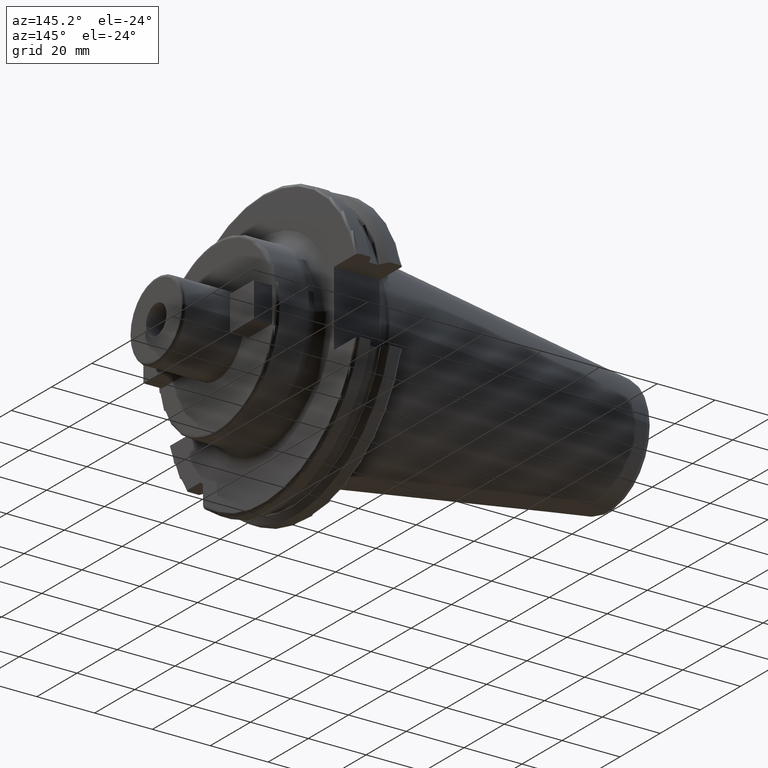
[diagram: clean part render]
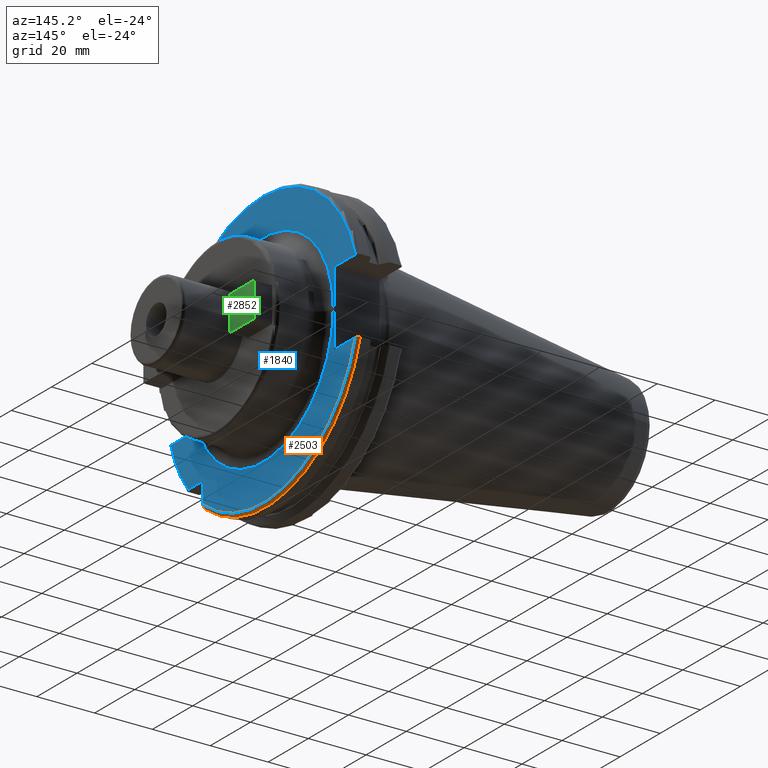
[diagram: same view with three faces highlighted in distinct colors, each labeled with its STEP entity id]
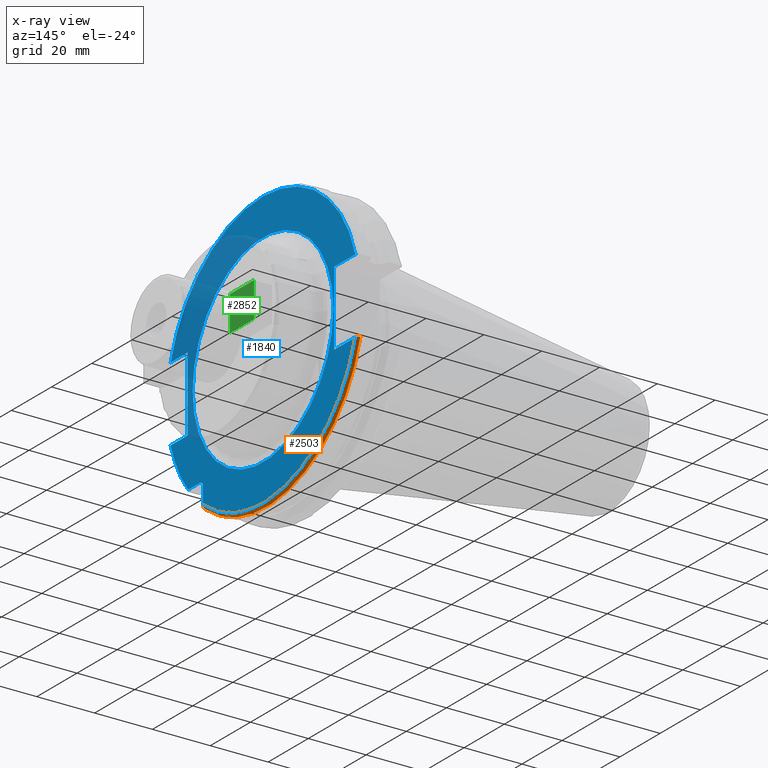
[diagram: x-ray of the same camera — body ghosted, the three highlighted faces saturated]
A machine part, auxiliary view with three faces highlighted in distinct colors.
The next image is the same camera in x-ray (body ghosted, the three faces saturated) — at least one of them is partly hidden behind the body in this view.
Their STEP definitions:

[orange] entity #2503 — the highlighted toroidal blend (fillet) surface has major radius 47.7375 mm and minor (blend) radius 1 mm.
#749=CARTESIAN_POINT('',(1.805E1,0.E0,0.E0));
#750=DIRECTION('',(-1.E0,0.E0,0.E0));
#751=DIRECTION('',(0.E0,9.643354064066E-1,-2.646832521159E-1));
#752=AXIS2_PLACEMENT_3D('',#749,#750,#751);
#823=CARTESIAN_POINT('',(1.805E1,4.699929686974E1,-1.29E1));
#824=CARTESIAN_POINT('',(1.812676342368E1,4.699929686974E1,-1.29E1));
#825=CARTESIAN_POINT('',(1.827575329770E1,4.698147245914E1,-1.29E1));
#826=CARTESIAN_POINT('',(1.849056832427E1,4.690313408822E1,-1.29E1));
#827=CARTESIAN_POINT('',(1.868190698842E1,4.677722381974E1,-1.29E1));
#828=CARTESIAN_POINT('',(1.884050497536E1,4.661134760606E1,-1.29E1));
#829=CARTESIAN_POINT('',(1.895953365851E1,4.641358752589E1,-1.29E1));
#830=CARTESIAN_POINT('',(1.903320906929E1,4.619315655817E1,-1.29E1));
#831=CARTESIAN_POINT('',(1.905E1,4.604021961607E1,-1.29E1));
#832=CARTESIAN_POINT('',(1.905E1,4.596149373389E1,-1.29E1));
#834=CARTESIAN_POINT('',(1.905E1,-2.985E1,-3.725381062724E1));
#835=CARTESIAN_POINT('',(1.905E1,-2.985E1,-3.738469466089E1));
#836=CARTESIAN_POINT('',(1.902018122037E1,-2.985E1,-3.763003230112E1));
#837=CARTESIAN_POINT('',(1.889737682100E1,-2.985E1,-3.796247242770E1));
#838=CARTESIAN_POINT('',(1.872069975737E1,-2.985E1,-3.821853261177E1));
#839=CARTESIAN_POINT('',(1.851107723549E1,-2.985E1,-3.839881428419E1));
#840=CARTESIAN_POINT('',(1.828305662300E1,-2.985E1,-3.850407117903E1));
#841=CARTESIAN_POINT('',(1.812863534913E1,-2.985E1,-3.852689198793E1));
#842=CARTESIAN_POINT('',(1.805E1,-2.985E1,-3.852689198793E1));
#844=CARTESIAN_POINT('',(1.905E1,0.E0,0.E0));
#845=DIRECTION('',(-1.E0,0.E0,0.E0));
#846=DIRECTION('',(0.E0,9.627964123359E-1,-2.702278083268E-1));
#847=AXIS2_PLACEMENT_3D('',#844,#845,#846);
#1468=CARTESIAN_POINT('',(1.905E1,4.596149373389E1,-1.29E1));
#1469=VERTEX_POINT('',#1468);
#1508=CARTESIAN_POINT('',(1.805E1,4.699929686974E1,-1.29E1));
#1509=VERTEX_POINT('',#1508);
#1531=CARTESIAN_POINT('',(1.905E1,-2.985E1,-3.725381062724E1));
#1532=VERTEX_POINT('',#1531);
#1533=CARTESIAN_POINT('',(1.805E1,-2.985E1,-3.852689198793E1));
#1534=VERTEX_POINT('',#1533);
#2492=CARTESIAN_POINT('',(1.805E1,0.E0,0.E0));
#2493=DIRECTION('',(1.E0,0.E0,0.E0));
#2494=DIRECTION('',(0.E0,-1.E0,0.E0));
#2495=AXIS2_PLACEMENT_3D('',#2492,#2493,#2494);
#2496=TOROIDAL_SURFACE('',#2495,4.77375E1,1.E0);
#2497=ORIENTED_EDGE('',*,*,#2003,.F.);
#2498=ORIENTED_EDGE('',*,*,#2437,.T.);
#2499=ORIENTED_EDGE('',*,*,#1849,.F.);
#2500=ORIENTED_EDGE('',*,*,#1830,.F.);
#2501=EDGE_LOOP('',(#2497,#2498,#2499,#2500));
#2502=FACE_OUTER_BOUND('',#2501,.F.);
#2503=ADVANCED_FACE('',(#2502),#2496,.T.);
#753=CIRCLE('',#752,4.87375E1);
#833=B_SPLINE_CURVE_WITH_KNOTS('',3,(#823,#824,#825,#826,#827,#828,#829,#830,
#831,#832),.UNSPECIFIED.,.F.,.F.,(4,1,1,1,1,1,1,4),(0.E0,1.428571428571E-1,
2.857142857143E-1,4.285714285714E-1,5.714285714286E-1,7.142857142857E-1,
8.571428571429E-1,1.E0),.UNSPECIFIED.);
#843=B_SPLINE_CURVE_WITH_KNOTS('',3,(#834,#835,#836,#837,#838,#839,#840,#841,
#842),.UNSPECIFIED.,.F.,.F.,(4,1,1,1,1,1,4),(0.E0,1.666666666667E-1,
3.333333333333E-1,5.E-1,6.666666666667E-1,8.333333333333E-1,1.E0),
.UNSPECIFIED.);
#848=CIRCLE('',#847,4.77375E1);
#1830=EDGE_CURVE('',#1469,#1532,#848,.T.);
#1849=EDGE_CURVE('',#1532,#1534,#843,.T.);
#2003=EDGE_CURVE('',#1509,#1469,#833,.T.);
#2437=EDGE_CURVE('',#1509,#1534,#753,.T.);

[blue] entity #1840 — the highlighted planar face has unit normal (1, 0, 0).
#126=DIRECTION('',(0.E0,0.E0,1.E0));
#127=VECTOR('',#126,5.653810627237E0);
#128=CARTESIAN_POINT('',(1.905E1,-2.985E1,-3.725381062724E1));
#129=LINE('',#128,#127);
#130=DIRECTION('',(0.E0,-1.E0,0.E0));
#131=VECTOR('',#130,5.653810627237E0);
#132=CARTESIAN_POINT('',(1.905E1,-3.16E1,-2.985E1));
#133=LINE('',#132,#131);
#134=DIRECTION('',(0.E0,1.E0,0.E0));
#135=VECTOR('',#134,8.461493733886E0);
#136=CARTESIAN_POINT('',(1.905E1,-4.596149373389E1,-1.29E1));
#137=LINE('',#136,#135);
#138=DIRECTION('',(0.E0,0.E0,1.E0));
#139=VECTOR('',#138,2.58E1);
#140=CARTESIAN_POINT('',(1.905E1,-3.75E1,-1.29E1));
#141=LINE('',#140,#139);
#142=DIRECTION('',(0.E0,1.E0,0.E0));
#143=VECTOR('',#142,8.461493733886E0);
#144=CARTESIAN_POINT('',(1.905E1,-4.596149373389E1,1.29E1));
#145=LINE('',#144,#143);
#146=DIRECTION('',(0.E0,-1.E0,0.E0));
#147=VECTOR('',#146,1.066149373389E1);
#148=CARTESIAN_POINT('',(1.905E1,4.596149373389E1,1.29E1));
#149=LINE('',#148,#147);
#150=DIRECTION('',(0.E0,0.E0,-1.E0));
#151=VECTOR('',#150,2.58E1);
#152=CARTESIAN_POINT('',(1.905E1,3.53E1,1.29E1));
#153=LINE('',#152,#151);
#154=DIRECTION('',(0.E0,-1.E0,0.E0));
#155=VECTOR('',#154,1.066149373389E1);
#156=CARTESIAN_POINT('',(1.905E1,4.596149373389E1,-1.29E1));
#157=LINE('',#156,#155);
#158=CARTESIAN_POINT('',(1.905E1,0.E0,0.E0));
#159=DIRECTION('',(1.E0,0.E0,0.E0));
#160=DIRECTION('',(0.E0,-1.E0,0.E0));
#161=AXIS2_PLACEMENT_3D('',#158,#159,#160);
#163=CARTESIAN_POINT('',(1.905E1,0.E0,0.E0));
#164=DIRECTION('',(1.E0,0.E0,0.E0));
#165=DIRECTION('',(0.E0,1.E0,0.E0));
#166=AXIS2_PLACEMENT_3D('',#163,#164,#165);
#172=CARTESIAN_POINT('',(1.905E1,-3.16E1,-3.16E1));
#173=DIRECTION('',(-1.E0,0.E0,0.E0));
#174=DIRECTION('',(0.E0,0.E0,1.E0));
#175=AXIS2_PLACEMENT_3D('',#172,#173,#174);
#545=CARTESIAN_POINT('',(1.905E1,0.E0,0.E0));
#546=DIRECTION('',(1.E0,0.E0,0.E0));
#547=DIRECTION('',(0.E0,9.627964123359E-1,2.702278083268E-1));
#548=AXIS2_PLACEMENT_3D('',#545,#546,#547);
#844=CARTESIAN_POINT('',(1.905E1,0.E0,0.E0));
#845=DIRECTION('',(-1.E0,0.E0,0.E0));
#846=DIRECTION('',(0.E0,9.627964123359E-1,-2.702278083268E-1));
#847=AXIS2_PLACEMENT_3D('',#844,#845,#846);
#860=CARTESIAN_POINT('',(1.905E1,0.E0,0.E0));
#861=DIRECTION('',(-1.E0,0.E0,0.E0));
#862=DIRECTION('',(0.E0,-7.803888060170E-1,-6.252945797329E-1));
#863=AXIS2_PLACEMENT_3D('',#860,#861,#862);
#874=CARTESIAN_POINT('',(1.905E1,-3.725381062724E1,-2.985E1));
#1462=CARTESIAN_POINT('',(1.905E1,4.596149373389E1,1.29E1));
#1463=CARTESIAN_POINT('',(1.905E1,3.53E1,1.29E1));
#1464=VERTEX_POINT('',#1462);
#1465=VERTEX_POINT('',#1463);
#1466=CARTESIAN_POINT('',(1.905E1,3.53E1,-1.29E1));
#1467=VERTEX_POINT('',#1466);
#1468=CARTESIAN_POINT('',(1.905E1,4.596149373389E1,-1.29E1));
#1469=VERTEX_POINT('',#1468);
#1470=CARTESIAN_POINT('',(1.905E1,-4.596149373389E1,-1.29E1));
#1471=CARTESIAN_POINT('',(1.905E1,-3.75E1,-1.29E1));
#1472=VERTEX_POINT('',#1470);
#1473=VERTEX_POINT('',#1471);
#1474=CARTESIAN_POINT('',(1.905E1,-3.75E1,1.29E1));
#1475=VERTEX_POINT('',#1474);
#1476=CARTESIAN_POINT('',(1.905E1,-4.596149373389E1,1.29E1));
#1477=VERTEX_POINT('',#1476);
#1531=CARTESIAN_POINT('',(1.905E1,-2.985E1,-3.725381062724E1));
#1532=VERTEX_POINT('',#1531);
#1539=CARTESIAN_POINT('',(1.905E1,-3.16E1,-2.985E1));
#1540=CARTESIAN_POINT('',(1.905E1,-2.985E1,-3.16E1));
#1541=VERTEX_POINT('',#1539);
#1542=VERTEX_POINT('',#1540);
#1564=VERTEX_POINT('',#874);
#1570=CARTESIAN_POINT('',(1.905E1,-3.5E1,0.E0));
#1571=CARTESIAN_POINT('',(1.905E1,3.5E1,0.E0));
#1572=VERTEX_POINT('',#1570);
#1573=VERTEX_POINT('',#1571);
#1804=CARTESIAN_POINT('',(1.905E1,0.E0,0.E0));
#1805=DIRECTION('',(1.E0,0.E0,0.E0));
#1806=DIRECTION('',(0.E0,-1.E0,0.E0));
#1807=AXIS2_PLACEMENT_3D('',#1804,#1805,#1806);
#1808=PLANE('',#1807);
#1810=ORIENTED_EDGE('',*,*,#1809,.T.);
#1812=ORIENTED_EDGE('',*,*,#1811,.F.);
#1814=ORIENTED_EDGE('',*,*,#1813,.T.);
#1816=ORIENTED_EDGE('',*,*,#1815,.T.);
#1818=ORIENTED_EDGE('',*,*,#1817,.T.);
#1820=ORIENTED_EDGE('',*,*,#1819,.T.);
#1822=ORIENTED_EDGE('',*,*,#1821,.F.);
#1824=ORIENTED_EDGE('',*,*,#1823,.F.);
#1826=ORIENTED_EDGE('',*,*,#1825,.T.);
#1827=ORIENTED_EDGE('',*,*,#1788,.T.);
#1829=ORIENTED_EDGE('',*,*,#1828,.F.);
#1831=ORIENTED_EDGE('',*,*,#1830,.T.);
#1832=EDGE_LOOP('',(#1810,#1812,#1814,#1816,#1818,#1820,#1822,#1824,#1826,#1827,
#1829,#1831));
#1833=FACE_OUTER_BOUND('',#1832,.F.);
#1835=ORIENTED_EDGE('',*,*,#1834,.T.);
#1837=ORIENTED_EDGE('',*,*,#1836,.T.);
#1838=EDGE_LOOP('',(#1835,#1837));
#1839=FACE_BOUND('',#1838,.F.);
#1840=ADVANCED_FACE('',(#1833,#1839),#1808,.T.);
#162=CIRCLE('',#161,3.5E1);
#167=CIRCLE('',#166,3.5E1);
#176=CIRCLE('',#175,1.75E0);
#549=CIRCLE('',#548,4.77375E1);
#848=CIRCLE('',#847,4.77375E1);
#864=CIRCLE('',#863,4.77375E1);
#1788=EDGE_CURVE('',#1465,#1467,#153,.T.);
#1809=EDGE_CURVE('',#1532,#1542,#129,.T.);
#1811=EDGE_CURVE('',#1541,#1542,#176,.T.);
#1813=EDGE_CURVE('',#1541,#1564,#133,.T.);
#1815=EDGE_CURVE('',#1564,#1472,#864,.T.);
#1817=EDGE_CURVE('',#1472,#1473,#137,.T.);
#1819=EDGE_CURVE('',#1473,#1475,#141,.T.);
#1821=EDGE_CURVE('',#1477,#1475,#145,.T.);
#1823=EDGE_CURVE('',#1464,#1477,#549,.T.);
#1825=EDGE_CURVE('',#1464,#1465,#149,.T.);
#1828=EDGE_CURVE('',#1469,#1467,#157,.T.);
#1830=EDGE_CURVE('',#1469,#1532,#848,.T.);
#1834=EDGE_CURVE('',#1572,#1573,#162,.T.);
#1836=EDGE_CURVE('',#1573,#1572,#167,.T.);

[green] entity #2852 — the highlighted planar face has unit normal (1, 0, 0).
#1086=DIRECTION('',(0.E0,-1.E0,0.E0));
#1087=VECTOR('',#1086,1.2E1);
#1088=CARTESIAN_POINT('',(4.13E1,2.75E1,6.E0));
#1089=LINE('',#1088,#1087);
#1090=DIRECTION('',(0.E0,0.E0,1.E0));
#1091=VECTOR('',#1090,1.2E1);
#1092=CARTESIAN_POINT('',(4.13E1,2.75E1,-6.E0));
#1093=LINE('',#1092,#1091);
#1094=DIRECTION('',(0.E0,1.E0,0.E0));
#1095=VECTOR('',#1094,1.2E1);
#1096=CARTESIAN_POINT('',(4.13E1,1.55E1,-6.E0));
#1097=LINE('',#1096,#1095);
#1098=DIRECTION('',(0.E0,0.E0,-1.E0));
#1099=VECTOR('',#1098,1.2E1);
#1100=CARTESIAN_POINT('',(4.13E1,1.55E1,6.E0));
#1101=LINE('',#1100,#1099);
#1604=CARTESIAN_POINT('',(4.13E1,2.75E1,6.E0));
#1605=CARTESIAN_POINT('',(4.13E1,1.55E1,6.E0));
#1606=VERTEX_POINT('',#1604);
#1607=VERTEX_POINT('',#1605);
#1608=CARTESIAN_POINT('',(4.13E1,1.55E1,-6.E0));
#1609=VERTEX_POINT('',#1608);
#1610=CARTESIAN_POINT('',(4.13E1,2.75E1,-6.E0));
#1611=VERTEX_POINT('',#1610);
#2841=CARTESIAN_POINT('',(4.13E1,0.E0,0.E0));
#2842=DIRECTION('',(1.E0,0.E0,0.E0));
#2843=DIRECTION('',(0.E0,0.E0,-1.E0));
#2844=AXIS2_PLACEMENT_3D('',#2841,#2842,#2843);
#2845=PLANE('',#2844);
#2846=ORIENTED_EDGE('',*,*,#2793,.F.);
#2847=ORIENTED_EDGE('',*,*,#2808,.F.);
#2848=ORIENTED_EDGE('',*,*,#2822,.F.);
#2849=ORIENTED_EDGE('',*,*,#2835,.F.);
#2850=EDGE_LOOP('',(#2846,#2847,#2848,#2849));
#2851=FACE_OUTER_BOUND('',#2850,.F.);
#2852=ADVANCED_FACE('',(#2851),#2845,.T.);
#2793=EDGE_CURVE('',#1606,#1607,#1089,.T.);
#2808=EDGE_CURVE('',#1611,#1606,#1093,.T.);
#2822=EDGE_CURVE('',#1609,#1611,#1097,.T.);
#2835=EDGE_CURVE('',#1607,#1609,#1101,.T.);